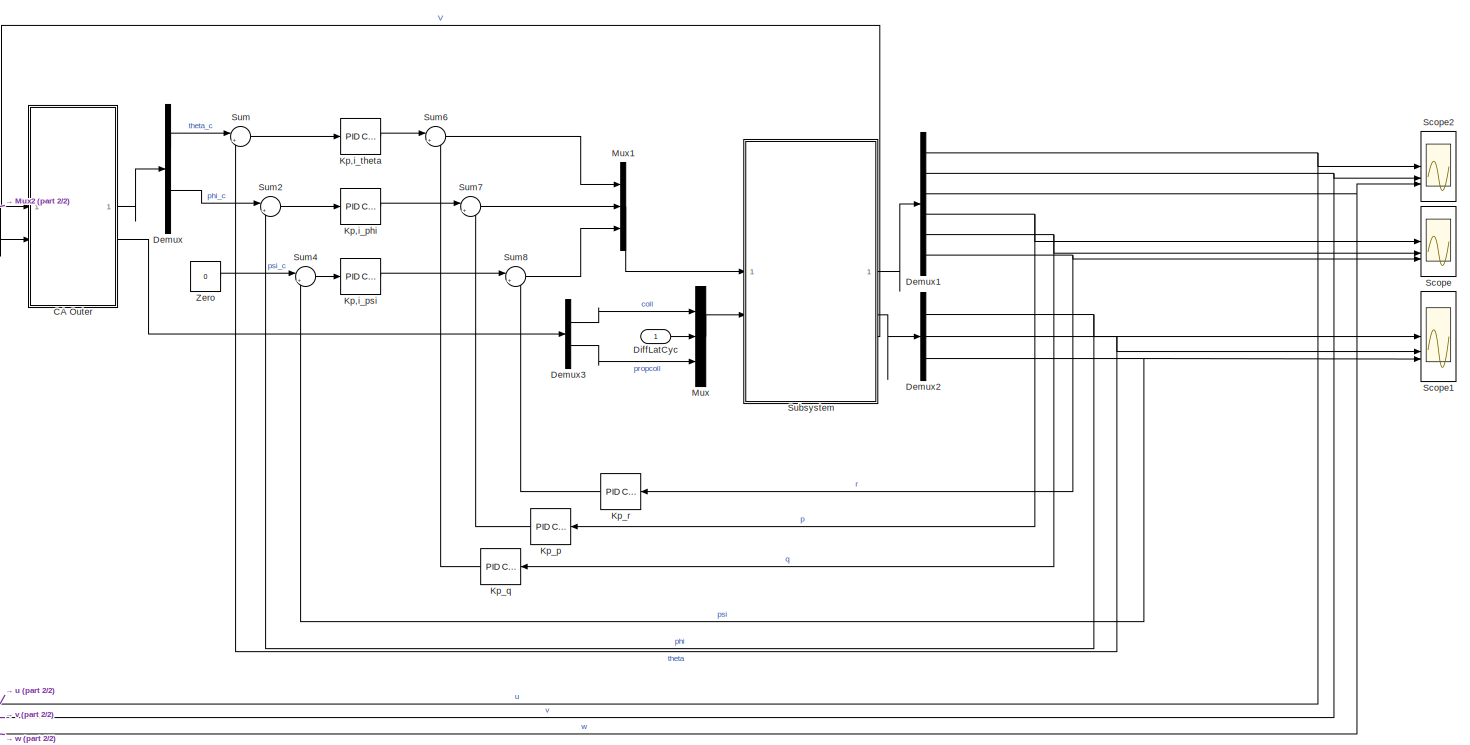
[diagram: root canvas - part 1/2, most of the canvas]
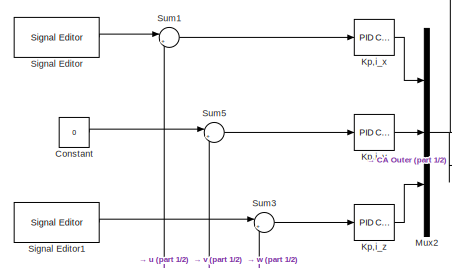
[diagram: root canvas - part 2/2, top left region]
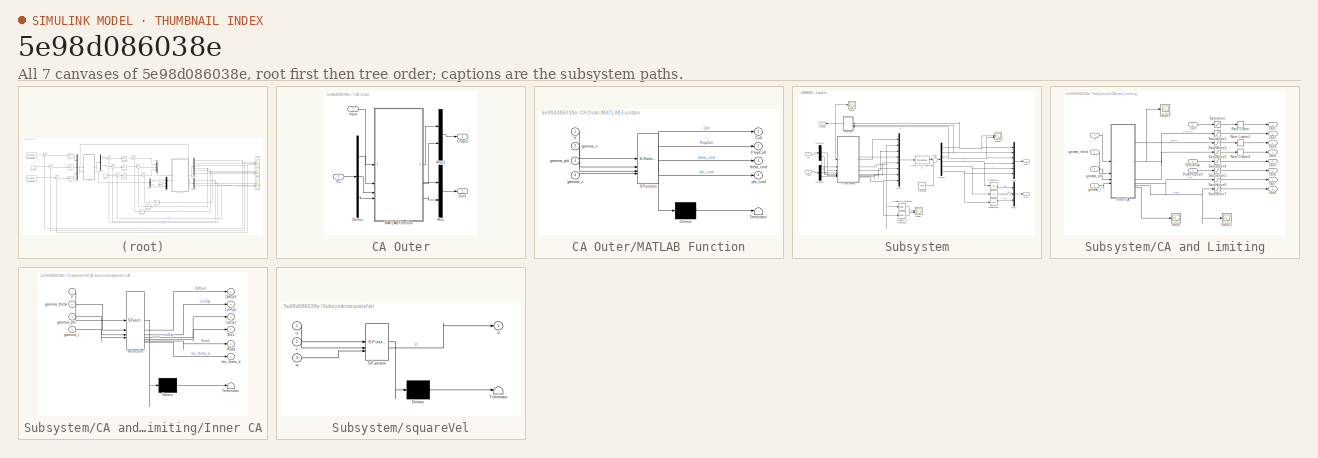
[diagram: thumbnail index - all 7 canvases of the model, root first then tree order]
MODEL slx_5e98d086038e
KIND model
CONFIG AbsTol = auto
CONFIG EnableMultiTasking = off
CONFIG FixedStep = auto
CONFIG MaxStep = auto
CONFIG MinStep = auto
CONFIG RelTol = 1e-3
CONFIG SampleTimeConstraint = Unconstrained
CONFIG SolverName = VariableStepAuto
CONFIG StartTime = 0.0
CONFIG StopTime = 10.0
BLOCK [SubSystem] CA Outer
BLOCK [Demux] CA Outer/Demux
  Outputs = 3
BLOCK [Inport] CA Outer/In1
  Port = 2
BLOCK [Inport] CA Outer/Input
BLOCK [SubSystem] CA Outer/MATLAB Function
  ErrorFcn = Stateflow.Translate.translate
  LibrarySourceBlock = simulink/User-Defined\nFunctions/MATLAB Function
  PermitHierarchicalResolution = ExplicitOnly
  SFBlockType = MATLAB Function
  TreatAsAtomicUnit = on
BLOCK [Demux] CA Outer/MATLAB Function/ Demux 
  Outputs = 1
BLOCK [S-Function] CA Outer/MATLAB Function/ SFunction 
  EnableBusSupport = on
  FunctionName = sf_sfun
  Parameters = L_theta_c,V_l_transit,V_u_transit,X_theta_p,Z_theta_0,epsilon
  PortCounts = [4 5]
  SFcnIsStateOwnerBlock = off
  SFunctionDeploymentMode = off
  Tag = Stateflow S-Function 3
BLOCK [Terminator] CA Outer/MATLAB Function/ Terminator 
BLOCK [Outport] CA Outer/MATLAB Function/Coll
BLOCK [Outport] CA Outer/MATLAB Function/PropColl
  Port = 2
BLOCK [Inport] CA Outer/MATLAB Function/V
BLOCK [Inport] CA Outer/MATLAB Function/gamma_phi
  Port = 3
BLOCK [Inport] CA Outer/MATLAB Function/gamma_x
  Port = 2
BLOCK [Inport] CA Outer/MATLAB Function/gamma_z
  Port = 4
BLOCK [Outport] CA Outer/MATLAB Function/phi_cmd
  Port = 4
BLOCK [Outport] CA Outer/MATLAB Function/theta_cmd
  Port = 3
BLOCK [Mux] CA Outer/Mux
  DisplayOption = bar
  Inputs = 2
BLOCK [Mux] CA Outer/Mux1
  DisplayOption = bar
  Inputs = 2
BLOCK [Outport] CA Outer/Out1
BLOCK [Outport] CA Outer/Output
  Port = 2
BLOCK [Constant] Constant
  Value = 0
BLOCK [Demux] Demux
  Outputs = 2
BLOCK [Demux] Demux1
  Outputs = 6
BLOCK [Demux] Demux2
  Outputs = 3
BLOCK [Demux] Demux3
  Outputs = 2
BLOCK [Inport] DiffLatCyc
BLOCK [Reference] Kp,i_phi  REF=slpidlib/PID Controller
  LibrarySourceBlock = simulink/Continuous/PID Controller
  SourceBlock = slpidlib/PID Controller
  SourceType = PID 1dof
BLOCK [Reference] Kp,i_psi  REF=slpidlib/PID Controller
  LibrarySourceBlock = simulink/Continuous/PID Controller
  SourceBlock = slpidlib/PID Controller
  SourceType = PID 1dof
BLOCK [Reference] Kp,i_theta  REF=slpidlib/PID Controller
  LibrarySourceBlock = simulink/Continuous/PID Controller
  SourceBlock = slpidlib/PID Controller
  SourceType = PID 1dof
BLOCK [Reference] Kp,i_x  REF=slpidlib/PID Controller
  LibrarySourceBlock = simulink/Continuous/PID Controller
  SourceBlock = slpidlib/PID Controller
  SourceType = PID 1dof
BLOCK [Reference] Kp,i_y  REF=slpidlib/PID Controller
  LibrarySourceBlock = simulink/Continuous/PID Controller
  SourceBlock = slpidlib/PID Controller
  SourceType = PID 1dof
BLOCK [Reference] Kp,i_z  REF=slpidlib/PID Controller
  LibrarySourceBlock = simulink/Continuous/PID Controller
  SourceBlock = slpidlib/PID Controller
  SourceType = PID 1dof
BLOCK [Reference] Kp_p  REF=slpidlib/PID Controller
  LibrarySourceBlock = simulink/Continuous/PID Controller
  SourceBlock = slpidlib/PID Controller
  SourceType = PID 1dof
BLOCK [Reference] Kp_q  REF=slpidlib/PID Controller
  LibrarySourceBlock = simulink/Continuous/PID Controller
  SourceBlock = slpidlib/PID Controller
  SourceType = PID 1dof
BLOCK [Reference] Kp_r  REF=slpidlib/PID Controller
  LibrarySourceBlock = simulink/Continuous/PID Controller
  SourceBlock = slpidlib/PID Controller
  SourceType = PID 1dof
BLOCK [Mux] Mux
  DisplayOption = bar
  Inputs = 3
BLOCK [Mux] Mux1
  DisplayOption = bar
  Inputs = 3
BLOCK [Mux] Mux2
  DisplayOption = bar
  Inputs = 3
BLOCK [Scope] Scope
  Floating = off
  NumInputPorts = 3
  ScopeSpecificationString = Simulink.scopes.TimeScopeBlockCfg('CurrentConfiguration', extmgr.ConfigurationSet(extmgr.Configuration('Core','General UI',true),extmgr.Configuration('Core','Source UI',true),extmgr.Configuration('Sources','WiredSimulink',true,'DataLoggingVariableName','ScopeData1'),extmgr.Configuration('Visuals','Time Domain',true,'SerializedDisplays',{struct('MinYLimReal','-0.02648','MaxYLimReal','0.09751','YLab...<+1366ch>
BLOCK [Scope] Scope1
  Floating = off
  NumInputPorts = 3
  ScopeSpecificationString = Simulink.scopes.TimeScopeBlockCfg('CurrentConfiguration', extmgr.ConfigurationSet(extmgr.Configuration('Core','General UI',true),extmgr.Configuration('Core','Source UI',true),extmgr.Configuration('Sources','WiredSimulink',true,'DataLoggingVariableName','ScopeData2'),extmgr.Configuration('Visuals','Time Domain',true,'SerializedDisplays',{struct('MinYLimReal','-0.00297','MaxYLimReal','0.0216','YLabe...<+1408ch>
BLOCK [Scope] Scope2
  Floating = off
  NumInputPorts = 3
  ScopeSpecificationString = Simulink.scopes.TimeScopeBlockCfg('CurrentConfiguration', extmgr.ConfigurationSet(extmgr.Configuration('Core','General UI',true),extmgr.Configuration('Core','Source UI',true),extmgr.Configuration('Sources','WiredSimulink',true,'DataLoggingVariableName','ScopeData3'),extmgr.Configuration('Visuals','Time Domain',true,'SerializedDisplays',{struct('MinYLimReal','-6.25091','MaxYLimReal','56.2501','YLab...<+1421ch>
BLOCK [Reference] Signal Editor  REF=SignalEditorBlockLib/Signal Editor
  LibrarySourceBlock = simulink/Sources/Signal Editor
  SourceBlock = SignalEditorBlockLib/Signal Editor
  SourceType = SignalEditor
  UserDataPersistent = on
BLOCK [Reference] Signal Editor1  REF=SignalEditorBlockLib/Signal Editor
  LibrarySourceBlock = simulink/Sources/Signal Editor
  SourceBlock = SignalEditorBlockLib/Signal Editor
  SourceType = SignalEditor
  UserDataPersistent = on
BLOCK [SubSystem] Subsystem
BLOCK [StateSpace] Subsystem/6 DoF CCH State-Space
  A = AA
  B = BB
  C = CC
  D = DD
  InitialCondition = 0
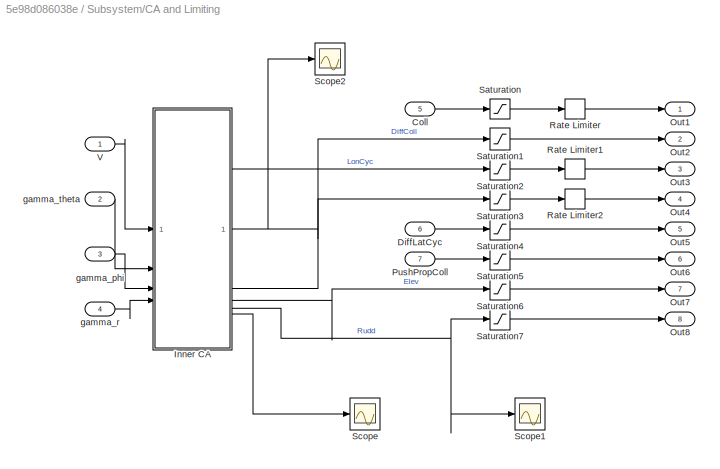
BLOCK [SubSystem] Subsystem/CA and Limiting
BLOCK [Inport] Subsystem/CA and Limiting/Coll
  Port = 5
BLOCK [Inport] Subsystem/CA and Limiting/DiffLatCyc
  Port = 6
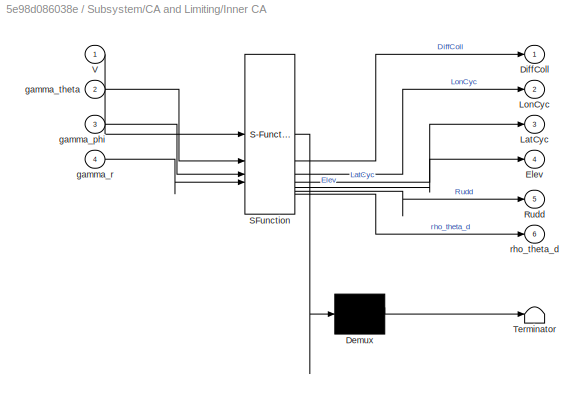
BLOCK [SubSystem] Subsystem/CA and Limiting/Inner CA
  ErrorFcn = Stateflow.Translate.translate
  LibrarySourceBlock = simulink/User-Defined\nFunctions/MATLAB Function
  PermitHierarchicalResolution = ExplicitOnly
  SFBlockType = MATLAB Function
  TreatAsAtomicUnit = on
BLOCK [Demux] Subsystem/CA and Limiting/Inner CA/ Demux 
  Outputs = 1
BLOCK [S-Function] Subsystem/CA and Limiting/Inner CA/ SFunction 
  EnableBusSupport = on
  FunctionName = sf_sfun
  Parameters = L_theta_c,M_delta_e,M_theta_s,N_delta_r,N_theta_d,V_l_transit,V_u_transit,epsilon
  PortCounts = [4 7]
  SFcnIsStateOwnerBlock = off
  SFunctionDeploymentMode = off
  Tag = Stateflow S-Function 2
BLOCK [Terminator] Subsystem/CA and Limiting/Inner CA/ Terminator 
BLOCK [Outport] Subsystem/CA and Limiting/Inner CA/DiffColl
BLOCK [Outport] Subsystem/CA and Limiting/Inner CA/Elev
  Port = 4
BLOCK [Outport] Subsystem/CA and Limiting/Inner CA/LatCyc
  Port = 3
BLOCK [Outport] Subsystem/CA and Limiting/Inner CA/LonCyc
  Port = 2
BLOCK [Outport] Subsystem/CA and Limiting/Inner CA/Rudd
  Port = 5
BLOCK [Inport] Subsystem/CA and Limiting/Inner CA/V
BLOCK [Inport] Subsystem/CA and Limiting/Inner CA/gamma_phi
  Port = 3
BLOCK [Inport] Subsystem/CA and Limiting/Inner CA/gamma_r
  Port = 4
BLOCK [Inport] Subsystem/CA and Limiting/Inner CA/gamma_theta
  Port = 2
BLOCK [Outport] Subsystem/CA and Limiting/Inner CA/rho_theta_d
  Port = 6
BLOCK [Outport] Subsystem/CA and Limiting/Out1
BLOCK [Outport] Subsystem/CA and Limiting/Out2
  Port = 2
BLOCK [Outport] Subsystem/CA and Limiting/Out3
  Port = 3
BLOCK [Outport] Subsystem/CA and Limiting/Out4
  Port = 4
BLOCK [Outport] Subsystem/CA and Limiting/Out5
  Port = 5
BLOCK [Outport] Subsystem/CA and Limiting/Out6
  Port = 6
BLOCK [Outport] Subsystem/CA and Limiting/Out7
  Port = 7
BLOCK [Outport] Subsystem/CA and Limiting/Out8
  Port = 8
BLOCK [Inport] Subsystem/CA and Limiting/PushPropColl
  Port = 7
BLOCK [RateLimiter] Subsystem/CA and Limiting/Rate Limiter
  FallingSlewLimit = deg2rad(-16)
  RisingSlewLimit = deg2rad(16)
  SampleTimeMode = inherited
BLOCK [RateLimiter] Subsystem/CA and Limiting/Rate Limiter1
  FallingSlewLimit = deg2rad(-28.8)
  RisingSlewLimit = deg2rad(28.8)
  SampleTimeMode = inherited
BLOCK [RateLimiter] Subsystem/CA and Limiting/Rate Limiter2
  FallingSlewLimit = deg2rad(-16)
  RisingSlewLimit = deg2rad(16)
  SampleTimeMode = inherited
BLOCK [Saturate] Subsystem/CA and Limiting/Saturation
  LowerLimit = 0
  UpperLimit = deg2rad(20)
BLOCK [Saturate] Subsystem/CA and Limiting/Saturation1
  LowerLimit = deg2rad(-5)
  UpperLimit = deg2rad(5)
BLOCK [Saturate] Subsystem/CA and Limiting/Saturation2
  LowerLimit = deg2rad(-12)
  UpperLimit = deg2rad(12)
BLOCK [Saturate] Subsystem/CA and Limiting/Saturation3
  LowerLimit = deg2rad(-12)
  UpperLimit = deg2rad(12)
BLOCK [Saturate] Subsystem/CA and Limiting/Saturation4
  LowerLimit = deg2rad(-3)
  UpperLimit = deg2rad(3)
BLOCK [Saturate] Subsystem/CA and Limiting/Saturation5
  LowerLimit = deg2rad(-10)
  UpperLimit = deg2rad(100)
BLOCK [Saturate] Subsystem/CA and Limiting/Saturation6
  LowerLimit = deg2rad(-20)
  UpperLimit = deg2rad(20)
BLOCK [Saturate] Subsystem/CA and Limiting/Saturation7
  LowerLimit = deg2rad(-20)
  UpperLimit = deg2rad(20)
BLOCK [Scope] Subsystem/CA and Limiting/Scope
  Floating = off
  NumInputPorts = 1
  ScopeSpecificationString = Simulink.scopes.TimeScopeBlockCfg('CurrentConfiguration', extmgr.ConfigurationSet(extmgr.Configuration('Core','General UI',true),extmgr.Configuration('Core','Source UI',true),extmgr.Configuration('Sources','WiredSimulink',true,'DataLoggingVariableName','ScopeData6'),extmgr.Configuration('Visuals','Time Domain',true,'SerializedDisplays',{struct('MinYLimReal','0.49996','MaxYLimReal','0.50036','YLabe...<+1406ch>
BLOCK [Scope] Subsystem/CA and Limiting/Scope1
  Floating = off
  NumInputPorts = 1
  ScopeSpecificationString = Simulink.scopes.TimeScopeBlockCfg('CurrentConfiguration', extmgr.ConfigurationSet(extmgr.Configuration('Core','General UI',true),extmgr.Configuration('Core','Source UI',true),extmgr.Configuration('Sources','WiredSimulink',true,'DataLoggingVariableName','ScopeData7'),extmgr.Configuration('Visuals','Time Domain',true,'SerializedDisplays',{struct('MinYLimReal','-0.00578','MaxYLimReal','0.02148','YLab...<+1415ch>
BLOCK [Scope] Subsystem/CA and Limiting/Scope2
  Floating = off
  NumInputPorts = 1
  ScopeSpecificationString = Simulink.scopes.TimeScopeBlockCfg('CurrentConfiguration', extmgr.ConfigurationSet(extmgr.Configuration('Core','General UI',true),extmgr.Configuration('Core','Source UI',true),extmgr.Configuration('Sources','WiredSimulink',true,'DataLoggingVariableName','ScopeData8'),extmgr.Configuration('Visuals','Time Domain',true,'SerializedDisplays',{struct('MinYLimReal','-0.000017','MaxYLimReal','0.000005','YL...<+1404ch>
BLOCK [Inport] Subsystem/CA and Limiting/V
BLOCK [Inport] Subsystem/CA and Limiting/gamma_phi
  Port = 3
BLOCK [Inport] Subsystem/CA and Limiting/gamma_r
  Port = 4
BLOCK [Inport] Subsystem/CA and Limiting/gamma_theta
  Port = 2
BLOCK [Constant] Subsystem/Constant
  Value = ytrim
BLOCK [Demux] Subsystem/Demux
  Outputs = 6
BLOCK [Demux] Subsystem/Demux1
  Outputs = 3
BLOCK [Demux] Subsystem/Demux2
  Outputs = 3
BLOCK [Inport] Subsystem/In1
BLOCK [Inport] Subsystem/Input
  Port = 2
BLOCK [Integrator] Subsystem/Integrator
BLOCK [Integrator] Subsystem/Integrator1
BLOCK [Integrator] Subsystem/Integrator2
BLOCK [Mux] Subsystem/Mux
  DisplayOption = bar
  Inputs = 6
BLOCK [Mux] Subsystem/Mux1
  DisplayOption = bar
  Inputs = 8
BLOCK [Mux] Subsystem/Mux2
  DisplayOption = bar
  Inputs = 3
BLOCK [Outport] Subsystem/Out1
BLOCK [Outport] Subsystem/Out2
  Port = 2
BLOCK [Outport] Subsystem/Output
  Port = 3
BLOCK [Reference] Subsystem/Radians to Degrees  REF=simulink_extras/Transformations/Radians
to Degrees
  SourceBlock = simulink_extras/Transformations/Radians\nto Degrees
  SourceType = RadiansToDegrees
BLOCK [Reference] Subsystem/Radians to Degrees1  REF=simulink_extras/Transformations/Radians
to Degrees
  SourceBlock = simulink_extras/Transformations/Radians\nto Degrees
  SourceType = RadiansToDegrees
BLOCK [Scope] Subsystem/Scope
  Floating = off
  NumInputPorts = 2
  ScopeSpecificationString = Simulink.scopes.TimeScopeBlockCfg('CurrentConfiguration', extmgr.ConfigurationSet(extmgr.Configuration('Core','General UI',true),extmgr.Configuration('Core','Source UI',true),extmgr.Configuration('Sources','WiredSimulink',true,'DataLoggingVariableName','ScopeData3'),extmgr.Configuration('Visuals','Time Domain',true,'SerializedDisplays',{struct('MinYLimReal','-0.34614','MaxYLimReal','0.21037','YLab...<+1429ch>
BLOCK [Scope] Subsystem/Scope1
  Floating = off
  NumInputPorts = 2
  ScopeSpecificationString = Simulink.scopes.TimeScopeBlockCfg('CurrentConfiguration', extmgr.ConfigurationSet(extmgr.Configuration('Core','General UI',true),extmgr.Configuration('Core','Source UI',true),extmgr.Configuration('Sources','WiredSimulink',true,'DataLoggingVariableName','ScopeData5'),extmgr.Configuration('Visuals','Time Domain',true,'SerializedDisplays',{struct('MinYLimReal','-6.25','MaxYLimReal','56.25','YLabelRea...<+1380ch>
BLOCK [Scope] Subsystem/Scope2
  Floating = off
  NumInputPorts = 1
  ScopeSpecificationString = Simulink.scopes.TimeScopeBlockCfg('CurrentConfiguration', extmgr.ConfigurationSet(extmgr.Configuration('Core','General UI',true),extmgr.Configuration('Core','Source UI',true),extmgr.Configuration('Sources','WiredSimulink',true,'DataLoggingVariableName','ScopeData4'),extmgr.Configuration('Visuals','Time Domain',true,'SerializedDisplays',{struct('MinYLimReal','49.97859','MaxYLimReal','50.00238','YLa...<+1374ch>
BLOCK [Sum] Subsystem/Sum
  Inputs = |++
BLOCK [SubSystem] Subsystem/squareVel
  ErrorFcn = Stateflow.Translate.translate
  LibrarySourceBlock = simulink/User-Defined\nFunctions/MATLAB Function
  PermitHierarchicalResolution = ExplicitOnly
  SFBlockType = MATLAB Function
  TreatAsAtomicUnit = on
BLOCK [Demux] Subsystem/squareVel/ Demux 
  Outputs = 1
BLOCK [S-Function] Subsystem/squareVel/ SFunction 
  EnableBusSupport = on
  FunctionName = sf_sfun
  Parameters = trimvelocity
  PortCounts = [3 2]
  SFcnIsStateOwnerBlock = off
  SFunctionDeploymentMode = off
  Tag = Stateflow S-Function 1
BLOCK [Terminator] Subsystem/squareVel/ Terminator 
BLOCK [Outport] Subsystem/squareVel/V
BLOCK [Inport] Subsystem/squareVel/u
BLOCK [Inport] Subsystem/squareVel/v
  Port = 2
BLOCK [Inport] Subsystem/squareVel/w
  Port = 3
BLOCK [Sum] Sum
  Inputs = |+-
BLOCK [Sum] Sum1
  Inputs = |+-
BLOCK [Sum] Sum2
  Inputs = |+-
BLOCK [Sum] Sum3
  Inputs = |+-
BLOCK [Sum] Sum4
  Inputs = |+-
BLOCK [Sum] Sum5
  Inputs = |+-
BLOCK [Sum] Sum6
  Inputs = |+-
BLOCK [Sum] Sum7
  Inputs = |+-
BLOCK [Sum] Sum8
  Inputs = |+-
BLOCK [Constant] Zero
  OutDataTypeStr = Inherit: Inherit via back propagation
  Value = 0
LINE CA Outer/Demux:1 -> CA Outer/MATLAB Function:2
LINE CA Outer/Demux:2 -> CA Outer/MATLAB Function:3
LINE CA Outer/Demux:3 -> CA Outer/MATLAB Function:4
LINE CA Outer/In1:1 -> CA Outer/Demux:1
LINE CA Outer/Input:1 -> CA Outer/MATLAB Function:1
LINE CA Outer/MATLAB Function:1 -> CA Outer/Mux1:1
LINE CA Outer/MATLAB Function:2 -> CA Outer/Mux1:2
LINE CA Outer/MATLAB Function:3 -> CA Outer/Mux:1
LINE CA Outer/MATLAB Function:4 -> CA Outer/Mux:2
LINE CA Outer/Mux1:1 -> CA Outer/Output:1
LINE CA Outer/Mux:1 -> CA Outer/Out1:1
LINE CA Outer:1 -> Demux:1
LINE CA Outer:2 -> Demux3:1
LINE Constant:1 -> Sum5:1
NET Demux1:1 -> Scope2:1, Sum1:2
NET Demux1:2 -> Scope2:2, Sum5:2
NET Demux1:3 -> Scope2:3, Sum3:2
NET Demux1:4 -> Kp_p:1, Scope:1
NET Demux1:5 -> Kp_q:1, Scope:2
NET Demux1:6 -> Kp_r:1, Scope:3
NET Demux2:1 -> Scope1:1, Sum2:2
NET Demux2:2 -> Scope1:2, Sum:2
NET Demux2:3 -> Scope1:3, Sum4:2
LINE Demux3:1 -> Mux:1
LINE Demux3:2 -> Mux:3
LINE Demux:1 -> Sum:1
LINE Demux:2 -> Sum2:1
LINE DiffLatCyc:1 -> Mux:2
LINE Kp,i_phi:1 -> Sum7:1
LINE Kp,i_psi:1 -> Sum8:1
LINE Kp,i_theta:1 -> Sum6:1
LINE Kp,i_x:1 -> Mux2:1
LINE Kp,i_y:1 -> Mux2:2
LINE Kp,i_z:1 -> Mux2:3
LINE Kp_p:1 -> Sum7:2
LINE Kp_q:1 -> Sum6:2
LINE Kp_r:1 -> Sum8:2
LINE Mux1:1 -> Subsystem:1
LINE Mux2:1 -> CA Outer:2
LINE Mux:1 -> Subsystem:2
LINE Signal Editor1:1 -> Sum3:1
LINE Signal Editor:1 -> Sum1:1
LINE Subsystem/6 DoF CCH State-Space:1 -> Subsystem/Sum:1
LINE Subsystem/CA and Limiting/Coll:1 -> Subsystem/CA and Limiting/Saturation:1
LINE Subsystem/CA and Limiting/DiffLatCyc:1 -> Subsystem/CA and Limiting/Saturation4:1
NET Subsystem/CA and Limiting/Inner CA:1 -> Subsystem/CA and Limiting/Saturation1:1, Subsystem/CA and Limiting/Scope2:1
LINE Subsystem/CA and Limiting/Inner CA:2 -> Subsystem/CA and Limiting/Saturation2:1
LINE Subsystem/CA and Limiting/Inner CA:3 -> Subsystem/CA and Limiting/Saturation3:1
LINE Subsystem/CA and Limiting/Inner CA:4 -> Subsystem/CA and Limiting/Saturation6:1
NET Subsystem/CA and Limiting/Inner CA:5 -> Subsystem/CA and Limiting/Saturation7:1, Subsystem/CA and Limiting/Scope1:1
LINE Subsystem/CA and Limiting/Inner CA:6 -> Subsystem/CA and Limiting/Scope:1
LINE Subsystem/CA and Limiting/PushPropColl:1 -> Subsystem/CA and Limiting/Saturation5:1
LINE Subsystem/CA and Limiting/Rate Limiter1:1 -> Subsystem/CA and Limiting/Out3:1
LINE Subsystem/CA and Limiting/Rate Limiter2:1 -> Subsystem/CA and Limiting/Out4:1
LINE Subsystem/CA and Limiting/Rate Limiter:1 -> Subsystem/CA and Limiting/Out1:1
LINE Subsystem/CA and Limiting/Saturation1:1 -> Subsystem/CA and Limiting/Out2:1
LINE Subsystem/CA and Limiting/Saturation2:1 -> Subsystem/CA and Limiting/Rate Limiter1:1
LINE Subsystem/CA and Limiting/Saturation3:1 -> Subsystem/CA and Limiting/Rate Limiter2:1
LINE Subsystem/CA and Limiting/Saturation4:1 -> Subsystem/CA and Limiting/Out5:1
LINE Subsystem/CA and Limiting/Saturation5:1 -> Subsystem/CA and Limiting/Out6:1
LINE Subsystem/CA and Limiting/Saturation6:1 -> Subsystem/CA and Limiting/Out7:1
LINE Subsystem/CA and Limiting/Saturation7:1 -> Subsystem/CA and Limiting/Out8:1
LINE Subsystem/CA and Limiting/Saturation:1 -> Subsystem/CA and Limiting/Rate Limiter:1
LINE Subsystem/CA and Limiting/V:1 -> Subsystem/CA and Limiting/Inner CA:1
LINE Subsystem/CA and Limiting/gamma_phi:1 -> Subsystem/CA and Limiting/Inner CA:3
LINE Subsystem/CA and Limiting/gamma_r:1 -> Subsystem/CA and Limiting/Inner CA:4
LINE Subsystem/CA and Limiting/gamma_theta:1 -> Subsystem/CA and Limiting/Inner CA:2
LINE Subsystem/CA and Limiting:1 -> Subsystem/Mux1:1
NET Subsystem/CA and Limiting:2 -> Subsystem/Mux1:2, Subsystem/Radians to Degrees:1
LINE Subsystem/CA and Limiting:3 -> Subsystem/Mux1:3
LINE Subsystem/CA and Limiting:4 -> Subsystem/Mux1:4
LINE Subsystem/CA and Limiting:5 -> Subsystem/Mux1:5
LINE Subsystem/CA and Limiting:6 -> Subsystem/Mux1:6
LINE Subsystem/CA and Limiting:7 -> Subsystem/Mux1:7
NET Subsystem/CA and Limiting:8 -> Subsystem/Mux1:8, Subsystem/Radians to Degrees1:1
LINE Subsystem/Constant:1 -> Subsystem/Sum:2
LINE Subsystem/Demux1:1 -> Subsystem/CA and Limiting:2
LINE Subsystem/Demux1:2 -> Subsystem/CA and Limiting:3
LINE Subsystem/Demux1:3 -> Subsystem/CA and Limiting:4
LINE Subsystem/Demux2:1 -> Subsystem/CA and Limiting:5
LINE Subsystem/Demux2:2 -> Subsystem/CA and Limiting:6
LINE Subsystem/Demux2:3 -> Subsystem/CA and Limiting:7
NET Subsystem/Demux:1 -> Subsystem/Mux:1, Subsystem/Scope1:1, Subsystem/squareVel:1
NET Subsystem/Demux:2 -> Subsystem/Mux:2, Subsystem/squareVel:2
NET Subsystem/Demux:3 -> Subsystem/Mux:3, Subsystem/Scope1:2, Subsystem/squareVel:3
NET Subsystem/Demux:4 -> Subsystem/Integrator1:1, Subsystem/Mux:4
NET Subsystem/Demux:5 -> Subsystem/Integrator:1, Subsystem/Mux:5
NET Subsystem/Demux:6 -> Subsystem/Integrator2:1, Subsystem/Mux:6
LINE Subsystem/In1:1 -> Subsystem/Demux1:1
LINE Subsystem/Input:1 -> Subsystem/Demux2:1
LINE Subsystem/Integrator1:1 -> Subsystem/Mux2:1
LINE Subsystem/Integrator2:1 -> Subsystem/Mux2:3
LINE Subsystem/Integrator:1 -> Subsystem/Mux2:2
LINE Subsystem/Mux1:1 -> Subsystem/6 DoF CCH State-Space:1
LINE Subsystem/Mux2:1 -> Subsystem/Out2:1
LINE Subsystem/Mux:1 -> Subsystem/Out1:1
LINE Subsystem/Radians to Degrees1:1 -> Subsystem/Scope:2
LINE Subsystem/Radians to Degrees:1 -> Subsystem/Scope:1
LINE Subsystem/Sum:1 -> Subsystem/Demux:1
NET Subsystem/squareVel:1 -> Subsystem/CA and Limiting:1, Subsystem/Output:1, Subsystem/Scope2:1
LINE Subsystem:1 -> Demux1:1
LINE Subsystem:2 -> Demux2:1
LINE Subsystem:3 -> CA Outer:1
LINE Sum1:1 -> Kp,i_x:1
LINE Sum2:1 -> Kp,i_phi:1
LINE Sum3:1 -> Kp,i_z:1
LINE Sum4:1 -> Kp,i_psi:1
LINE Sum5:1 -> Kp,i_y:1
LINE Sum6:1 -> Mux1:1
LINE Sum7:1 -> Mux1:2
LINE Sum8:1 -> Mux1:3
LINE Sum:1 -> Kp,i_theta:1
LINE Zero:1 -> Sum4:1
note: NET lines group one-source signal fan-out (src -> all destinations, sorted); 1:1 wires keep LINE
CHART Subsystem/squareVel states=1 transitions=1
  STATE_LABEL 'eML_blk_kernel()'
  STATE_LABEL 'SCRIPT:\nfunction V = fcn(u,v,w, trimvelocity)\n\nV = sqrt(u^2+v^2+w^2);\n'
CHART Subsystem/CA and Limiting/Inner CA states=1 transitions=1
  STATE_LABEL 'eML_blk_kernel()'
  STATE_LABEL 'SCRIPT:\nfunction [DiffColl, LonCyc, LatCyc, Elev, Rudd, rho_theta_d] = fcn(V, gamma_theta, gamma_phi, gamma_r, V_l_transit, epsilon, V_u_transit, M_theta_s, M_delta_e, L_theta_c, N_theta_d, N_delta_r)\n    \n    % Allocation Weights\n    if V<V_l_transit\n        rho_theta_c = 1;\n        rho_delta_e = epsilon;\n\n        rho_theta_d = 1;\n        rho_delta_r = epsilon;\n\n    elseif V>V_l_transit && V<V_u_...<+962ch>'
CHART CA Outer/MATLAB Function states=1 transitions=1
  STATE_LABEL 'eML_blk_kernel()'
  STATE_LABEL 'SCRIPT:\nfunction [Coll, PropColl, theta_cmd, phi_cmd] = fcn(V, gamma_x, gamma_phi, gamma_z, X_theta_p, Z_theta_0, V_u_transit, epsilon, V_l_transit, L_theta_c)\n    \n    % Allocation Weights\n    if V<V_l_transit\n        rho_theta_x_cmd = 1;\n        rho_theta_p = epsilon;\n\n        rho_theta_0 = 1;\n        rho_theta_z_cmd = epsilon;\n\n    elseif V>V_l_transit && V<V_u_transit\n        rho_theta_x_cmd =...<+932ch>'
CHART  states=0 transitions=0
CHART  states=0 transitions=0
CHART  states=0 transitions=0
